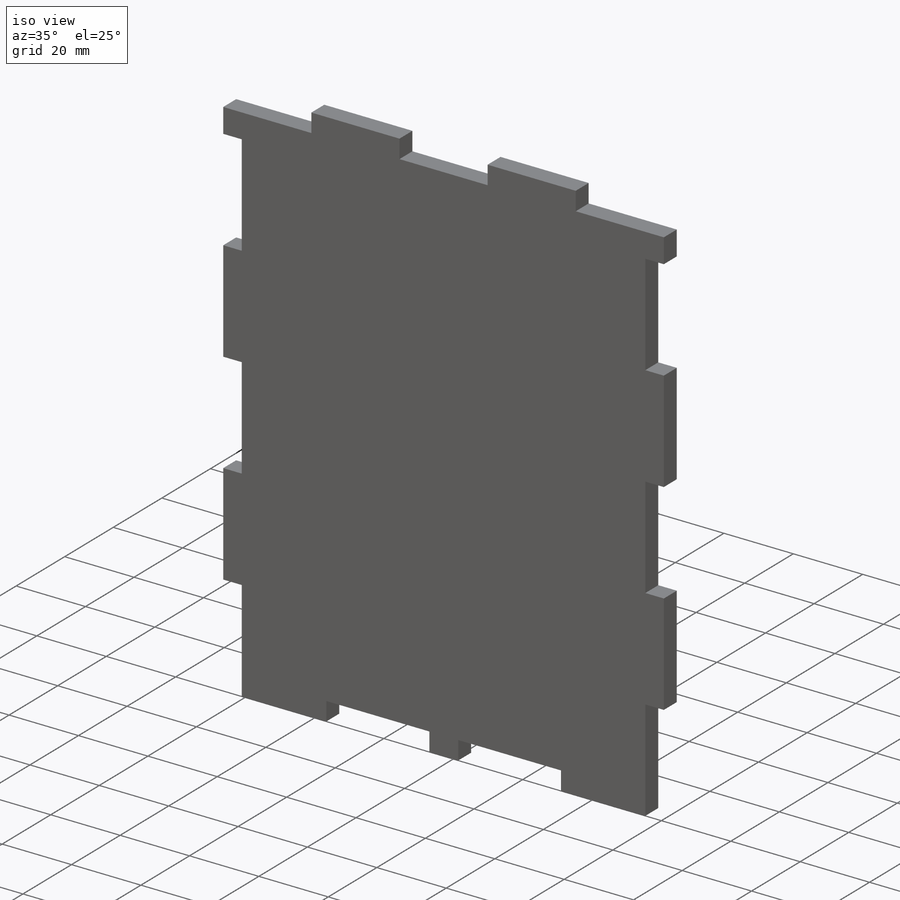
[diagram: iso view]
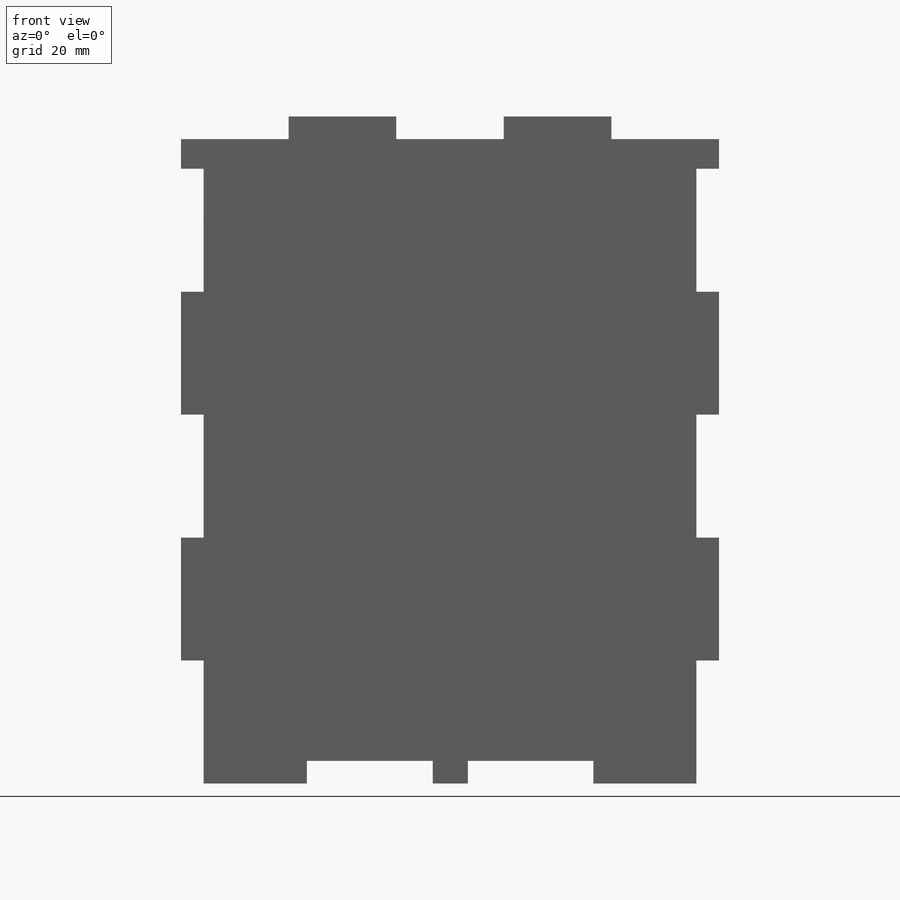
[diagram: front view]
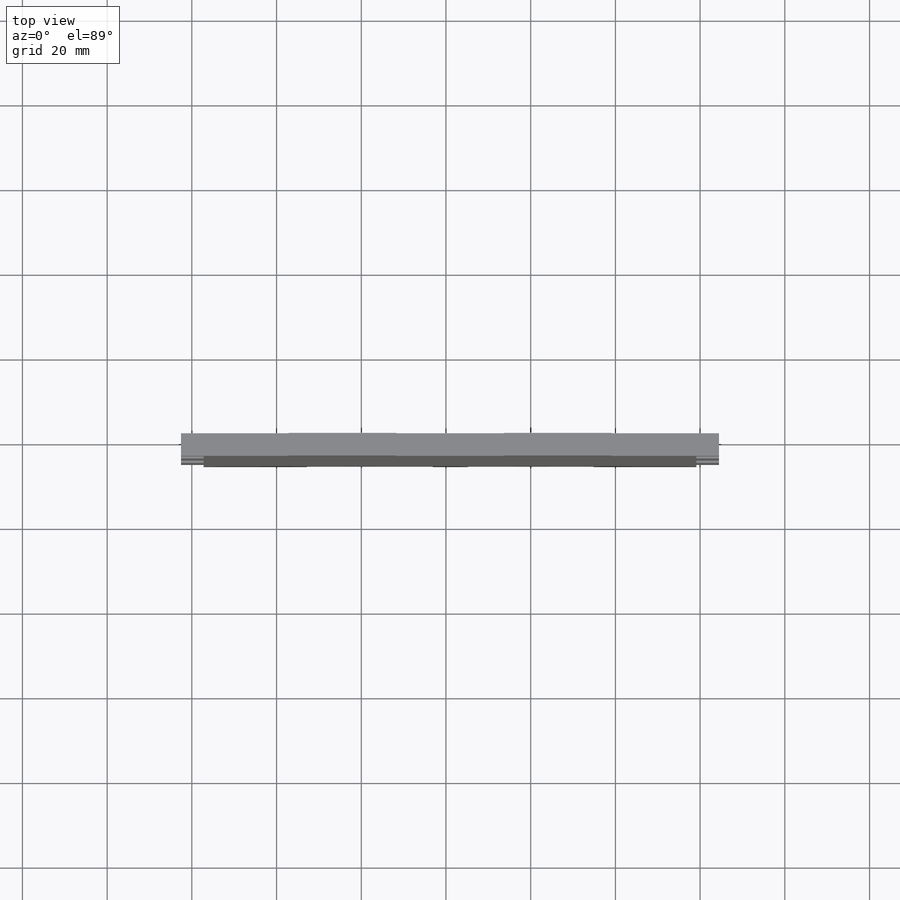
[diagram: top view]
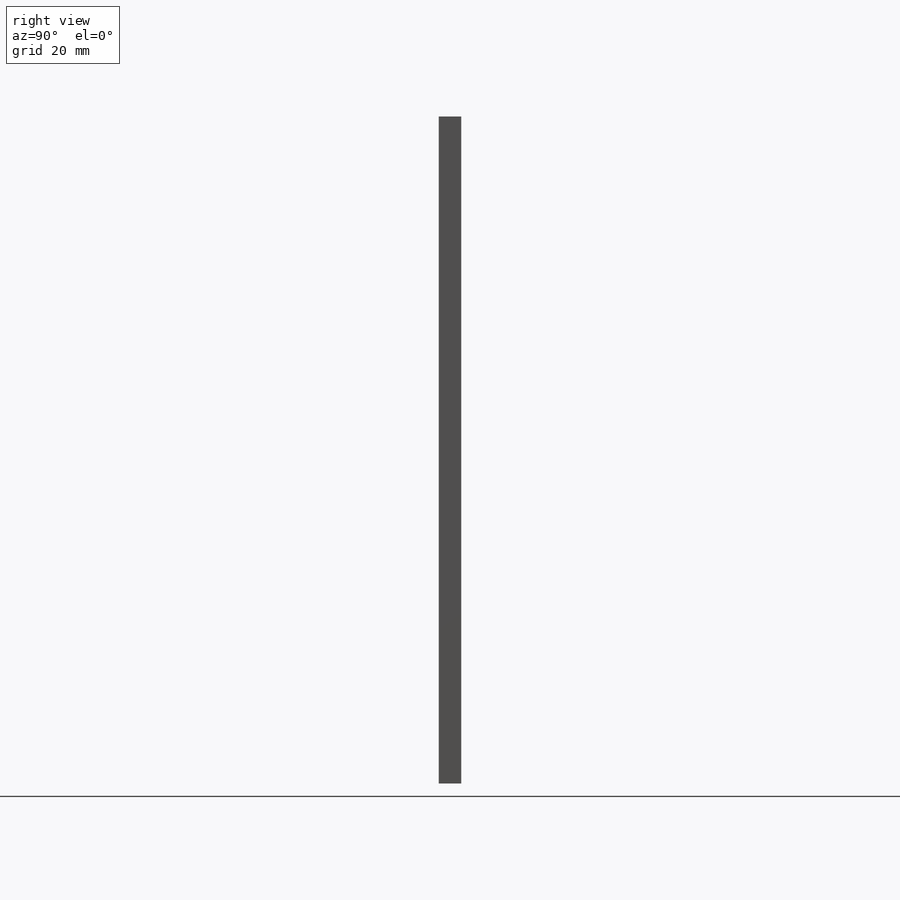
[diagram: right view]
SOLIDWORKS PART (.sldprt)
format: sldprt  version: not decoded by parser v0  size: 405,504 bytes
history: native  units: mm
features: sketch x8, cut_extrude x6, extrude x5, material x1 (+11 scaffold rows collapsed)
feature tree (31):
  scaffold x11  (default folders/planes/origin — collapsed)
  material  "Material <not specified>"
  sketch  "Sketch1"  dims[D1=203.2mm D2=88.9mm]
  extrude  "Boss-Extrude1"  Depth=6.35mm
  sketch  "Sketch3"  dims[D1=~9.717215mm]
  cut_extrude  "Cut-Extrude2"  [1 undecoded]
  extrude  "boxSide<2>@MinSpecRobot1"  [1 undecoded]
  sketch  "Sketch4"  dims[D1=157.48mm]
  cut_extrude  "Cut-Extrude3"  [1 undecoded]
  sketch  "Sketch5"  dims[D1=127.0mm]
  extrude  "Boss-Extrude2"  [1 undecoded]
  extrude  "boxTop<1>@MinSpecRobot1"  [1 undecoded]
  extrude  "boxSide<2>@MinSpecRobot2"  [1 undecoded]
  sketch  "Sketch7"
  cut_extrude  "Cut-Extrude4"  [1 undecoded]
  sketch  "Sketch8"  dims[D1=24.384mm D2=29.718mm D3=~6.289793mm]
  cut_extrude  "Cut-Extrude5"  [1 undecoded]
  sketch  "Sketch9"  dims[D1=0.0mm]
  cut_extrude  "Cut-Extrude6"  [1 undecoded]
  sketch  "Sketch10"
  cut_extrude  "Cut-Extrude8"  [1 undecoded]
decode coverage: 7 of 19 modeling features carry decoded parameters
note: ~ marks probable driven/reference dimensions
note: 10 parameter values undecoded
summary: no parameter record found for 10 features
note: suppression state not decoded; provenance and decode notes live in map.json
